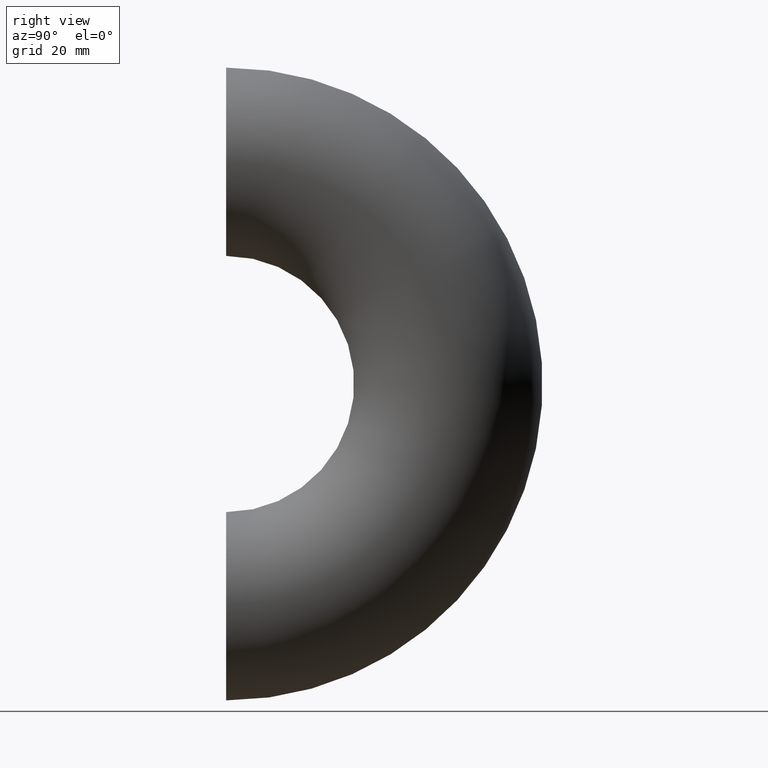
[diagram: clean part render]
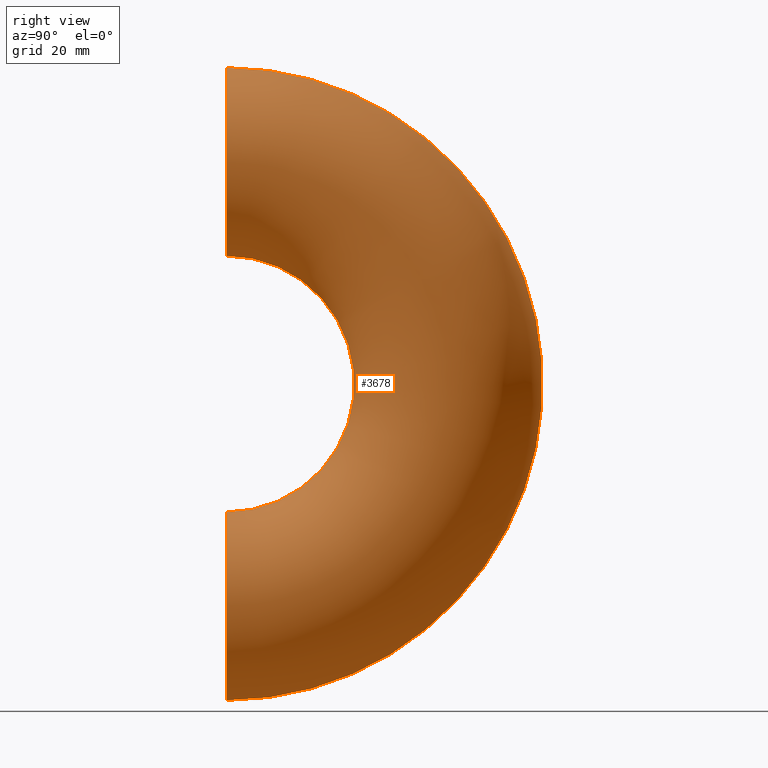
[diagram: same view with one face highlighted and labeled with its STEP entity id]
A machine part, right view. The second image highlights one B-rep face of the part: STEP entity #3678.
In plain terms, the highlighted toroidal blend (fillet) surface has major radius 57 mm and minor (blend) radius 24.15 mm.
Its self-contained STEP definition (entity closure, byte-faithful):
#110 = VERTEX_POINT ( 'NONE', #5860 ) ;
#126 = VERTEX_POINT ( 'NONE', #5056 ) ;
#154 = AXIS2_PLACEMENT_3D ( 'NONE', #3656, #4580, #1216 ) ;
#369 = VERTEX_POINT ( 'NONE', #1417 ) ;
#1058 = CARTESIAN_POINT ( 'NONE',  ( 0.0000000000000000000, 0.0000000000000000000, 0.0000000000000000000 ) ) ;
#1073 = DIRECTION ( 'NONE',  ( 0.0000000000000000000, 0.0000000000000000000, 1.000000000000000000 ) ) ;
#1216 = DIRECTION ( 'NONE',  ( 0.0000000000000000000, -1.224646799147353500E-016, -1.000000000000000000 ) ) ;
#1417 = CARTESIAN_POINT ( 'NONE',  ( 0.0000000000000000000, 0.0000000000000000000, -32.84999999999997300 ) ) ;
#1532 = DIRECTION ( 'NONE',  ( -1.000000000000000000, -0.0000000000000000000, -0.0000000000000000000 ) ) ;
#2631 = DIRECTION ( 'NONE',  ( -1.000000000000000000, -0.0000000000000000000, -0.0000000000000000000 ) ) ;
#2831 = CARTESIAN_POINT ( 'NONE',  ( 0.0000000000000000000, 0.0000000000000000000, -56.99999999999997200 ) ) ;
#2904 = ORIENTED_EDGE ( 'NONE', *, *, #3280, .T. ) ;
#3223 = CARTESIAN_POINT ( 'NONE',  ( 0.0000000000000000000, 0.0000000000000000000, 0.0000000000000000000 ) ) ;
#3253 = DIRECTION ( 'NONE',  ( 0.0000000000000000000, 0.0000000000000000000, 1.000000000000000000 ) ) ;
#3271 = CIRCLE ( 'NONE', #7716, 81.14999999999997700 ) ;
#3280 = EDGE_CURVE ( 'NONE', #369, #7555, #3536, .T. ) ;
#3536 = CIRCLE ( 'NONE', #7404, 24.14999999999999900 ) ;
#3656 = CARTESIAN_POINT ( 'NONE',  ( 0.0000000000000000000, 6.980486755139909800E-015, 56.99999999999997200 ) ) ;
#3678 = ADVANCED_FACE ( 'NONE', ( #6017 ), #6416, .T. ) ;
#4051 = CARTESIAN_POINT ( 'NONE',  ( 2.957522019940857900E-015, 0.0000000000000000000, 0.0000000000000000000 ) ) ;
#4471 = CARTESIAN_POINT ( 'NONE',  ( 0.0000000000000000000, 0.0000000000000000000, -81.14999999999997700 ) ) ;
#4580 = DIRECTION ( 'NONE',  ( 0.0000000000000000000, -1.000000000000000000, 1.224646799147353200E-016 ) ) ;
#4878 = EDGE_CURVE ( 'NONE', #110, #369, #8026, .T. ) ;
#5056 = CARTESIAN_POINT ( 'NONE',  ( 0.0000000000000000000, 9.938008775080767700E-015, 81.14999999999997700 ) ) ;
#5233 = DIRECTION ( 'NONE',  ( 0.0000000000000000000, 0.0000000000000000000, 1.000000000000000000 ) ) ;
#5860 = CARTESIAN_POINT ( 'NONE',  ( 0.0000000000000000000, 4.022964735199051800E-015, 32.84999999999997300 ) ) ;
#5913 = ORIENTED_EDGE ( 'NONE', *, *, #4878, .T. ) ;
#5974 = AXIS2_PLACEMENT_3D ( 'NONE', #3223, #8394, #3253 ) ;
#6017 = FACE_OUTER_BOUND ( 'NONE', #7714, .T. ) ;
#6416 = TOROIDAL_SURFACE ( 'NONE', #5974, 56.99999999999997200, 24.14999999999999900 ) ;
#6720 = ORIENTED_EDGE ( 'NONE', *, *, #9008, .F. ) ;
#6997 = DIRECTION ( 'NONE',  ( 0.0000000000000000000, 1.000000000000000000, 0.0000000000000000000 ) ) ;
#7404 = AXIS2_PLACEMENT_3D ( 'NONE', #2831, #6997, #1073 ) ;
#7492 = CIRCLE ( 'NONE', #154, 24.14999999999999900 ) ;
#7555 = VERTEX_POINT ( 'NONE', #4471 ) ;
#7714 = EDGE_LOOP ( 'NONE', ( #8908, #6720, #5913, #2904 ) ) ;
#7716 = AXIS2_PLACEMENT_3D ( 'NONE', #1058, #2631, #5233 ) ;
#8026 = CIRCLE ( 'NONE', #10386, 32.84999999999997300 ) ;
#8394 = DIRECTION ( 'NONE',  ( -1.000000000000000000, -0.0000000000000000000, -0.0000000000000000000 ) ) ;
#8908 = ORIENTED_EDGE ( 'NONE', *, *, #8918, .F. ) ;
#8918 = EDGE_CURVE ( 'NONE', #126, #7555, #3271, .T. ) ;
#9008 = EDGE_CURVE ( 'NONE', #110, #126, #7492, .T. ) ;
#10386 = AXIS2_PLACEMENT_3D ( 'NONE', #4051, #1532, #10778 ) ;
#10778 = DIRECTION ( 'NONE',  ( 0.0000000000000000000, 0.0000000000000000000, 1.000000000000000000 ) ) ;